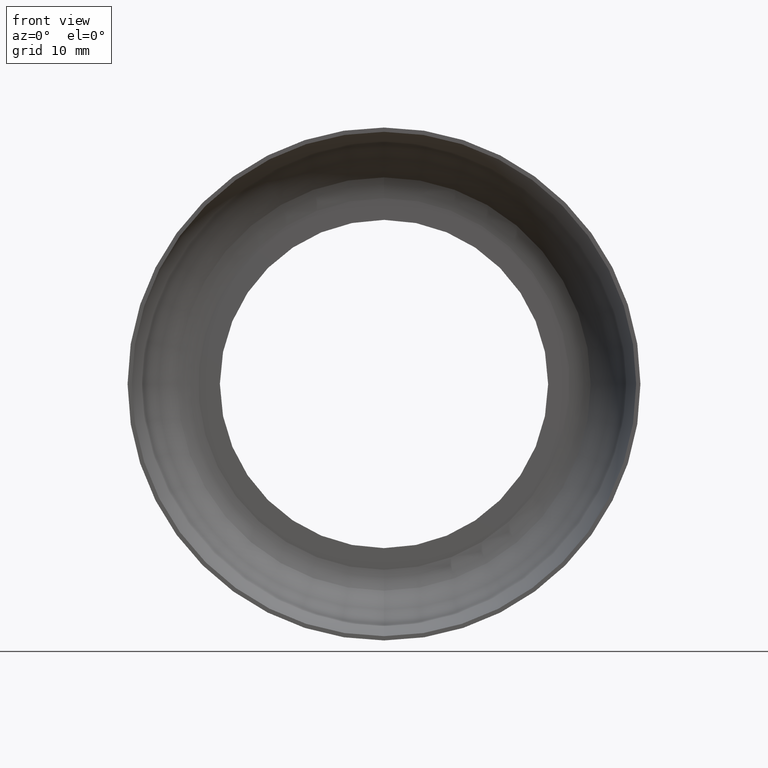
[diagram: clean part render]
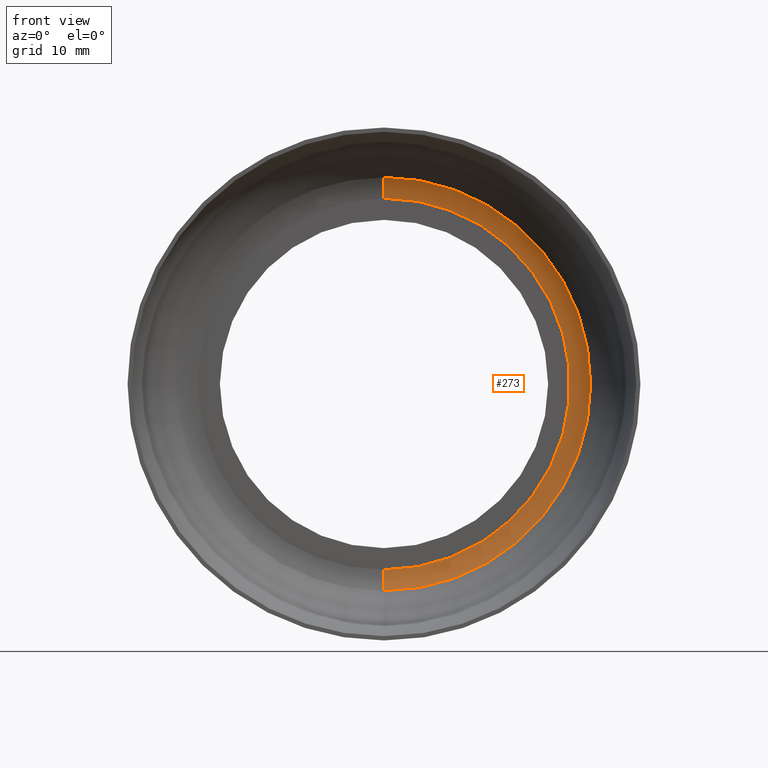
[diagram: same view with one face highlighted and labeled with its STEP entity id]
A machine part, front view. The second image highlights one B-rep face of the part: STEP entity #273.
In plain terms, the highlighted toroidal blend (fillet) surface has major radius 21.7328 mm and minor (blend) radius 4.5 mm.
Its self-contained STEP definition (entity closure, byte-faithful):
#7 = AXIS2_PLACEMENT_3D ( 'NONE', #57, #86, #311 ) ;
#9 = CARTESIAN_POINT ( 'NONE',  ( 0.0000000000000000000, 9.779999999999997600, 0.0000000000000000000 ) ) ;
#16 = CARTESIAN_POINT ( 'NONE',  ( 0.0000000000000000000, 10.49999999999999800, -21.73275999035729800 ) ) ;
#25 = EDGE_CURVE ( 'NONE', #285, #210, #298, .T. ) ;
#50 = AXIS2_PLACEMENT_3D ( 'NONE', #157, #225, #193 ) ;
#57 = CARTESIAN_POINT ( 'NONE',  ( 0.0000000000000000000, 10.49999999999999800, 0.0000000000000000000 ) ) ;
#86 = DIRECTION ( 'NONE',  ( -0.0000000000000000000, -1.000000000000000000, -0.0000000000000000000 ) ) ;
#92 = TOROIDAL_SURFACE ( 'NONE', #276, 21.73275999035729800, 4.499999999999999100 ) ;
#93 = CIRCLE ( 'NONE', #289, 4.500000000000000900 ) ;
#97 = DIRECTION ( 'NONE',  ( -0.0000000000000000000, -1.000000000000000000, -0.0000000000000000000 ) ) ;
#120 = VERTEX_POINT ( 'NONE', #392 ) ;
#133 = VERTEX_POINT ( 'NONE', #236 ) ;
#138 = EDGE_CURVE ( 'NONE', #285, #120, #93, .T. ) ;
#148 = EDGE_LOOP ( 'NONE', ( #217, #254, #186, #271 ) ) ;
#157 = CARTESIAN_POINT ( 'NONE',  ( 2.661495495882872600E-015, 5.999999999999999100, 21.73275999035729800 ) ) ;
#174 = CARTESIAN_POINT ( 'NONE',  ( 0.0000000000000000000, 5.999999999999999100, -21.73275999035729800 ) ) ;
#186 = ORIENTED_EDGE ( 'NONE', *, *, #138, .T. ) ;
#187 = DIRECTION ( 'NONE',  ( 0.0000000000000000000, 0.0000000000000000000, 1.000000000000000000 ) ) ;
#193 = DIRECTION ( 'NONE',  ( -1.224646799147352700E-016, 0.0000000000000000000, -1.000000000000000000 ) ) ;
#196 = DIRECTION ( 'NONE',  ( 0.0000000000000000000, 0.0000000000000000000, -1.000000000000000000 ) ) ;
#210 = VERTEX_POINT ( 'NONE', #397 ) ;
#211 = DIRECTION ( 'NONE',  ( -1.000000000000000000, 0.0000000000000000000, 0.0000000000000000000 ) ) ;
#217 = ORIENTED_EDGE ( 'NONE', *, *, #263, .F. ) ;
#225 = DIRECTION ( 'NONE',  ( 1.000000000000000000, 0.0000000000000000000, -1.224646799147353200E-016 ) ) ;
#236 = CARTESIAN_POINT ( 'NONE',  ( 2.960510009248309900E-015, 9.779999999999997600, 24.17439878428239600 ) ) ;
#237 = AXIS2_PLACEMENT_3D ( 'NONE', #9, #287, #381 ) ;
#249 = CIRCLE ( 'NONE', #237, 24.17439878428239600 ) ;
#252 = EDGE_CURVE ( 'NONE', #120, #133, #249, .T. ) ;
#254 = ORIENTED_EDGE ( 'NONE', *, *, #25, .F. ) ;
#263 = EDGE_CURVE ( 'NONE', #210, #133, #266, .T. ) ;
#266 = CIRCLE ( 'NONE', #50, 4.500000000000000900 ) ;
#271 = ORIENTED_EDGE ( 'NONE', *, *, #252, .T. ) ;
#273 = ADVANCED_FACE ( 'NONE', ( #293 ), #92, .F. ) ;
#276 = AXIS2_PLACEMENT_3D ( 'NONE', #380, #97, #196 ) ;
#285 = VERTEX_POINT ( 'NONE', #16 ) ;
#287 = DIRECTION ( 'NONE',  ( -0.0000000000000000000, -1.000000000000000000, -0.0000000000000000000 ) ) ;
#289 = AXIS2_PLACEMENT_3D ( 'NONE', #174, #211, #187 ) ;
#293 = FACE_OUTER_BOUND ( 'NONE', #148, .T. ) ;
#298 = CIRCLE ( 'NONE', #7, 21.73275999035729800 ) ;
#311 = DIRECTION ( 'NONE',  ( 0.0000000000000000000, 0.0000000000000000000, -1.000000000000000000 ) ) ;
#380 = CARTESIAN_POINT ( 'NONE',  ( 0.0000000000000000000, 5.999999999999999100, 0.0000000000000000000 ) ) ;
#381 = DIRECTION ( 'NONE',  ( 0.0000000000000000000, 0.0000000000000000000, -1.000000000000000000 ) ) ;
#392 = CARTESIAN_POINT ( 'NONE',  ( 0.0000000000000000000, 9.779999999999997600, -24.17439878428239600 ) ) ;
#397 = CARTESIAN_POINT ( 'NONE',  ( 2.811002752565591000E-015, 10.49999999999999800, 21.73275999035729800 ) ) ;